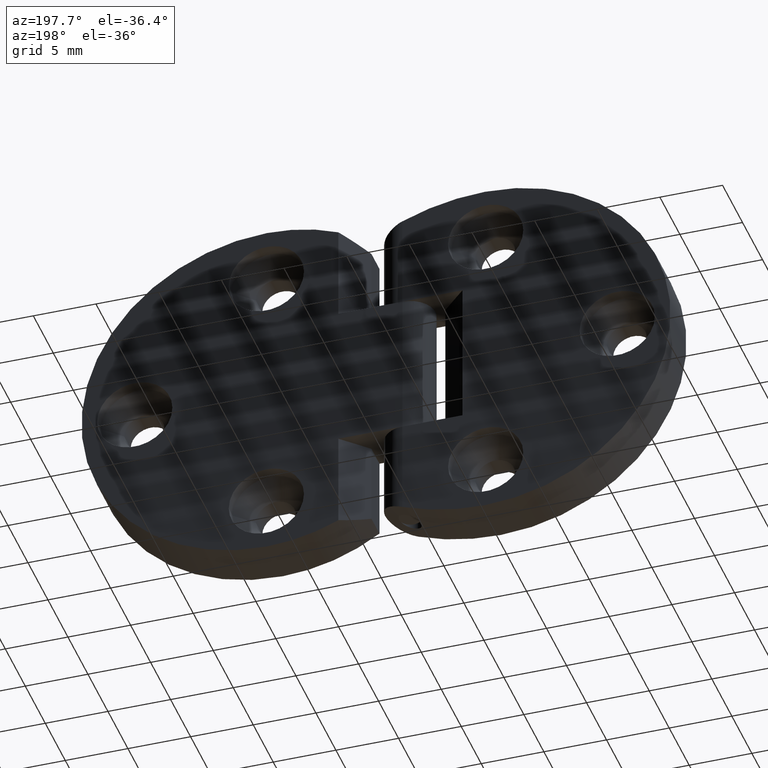
[diagram: clean part render]
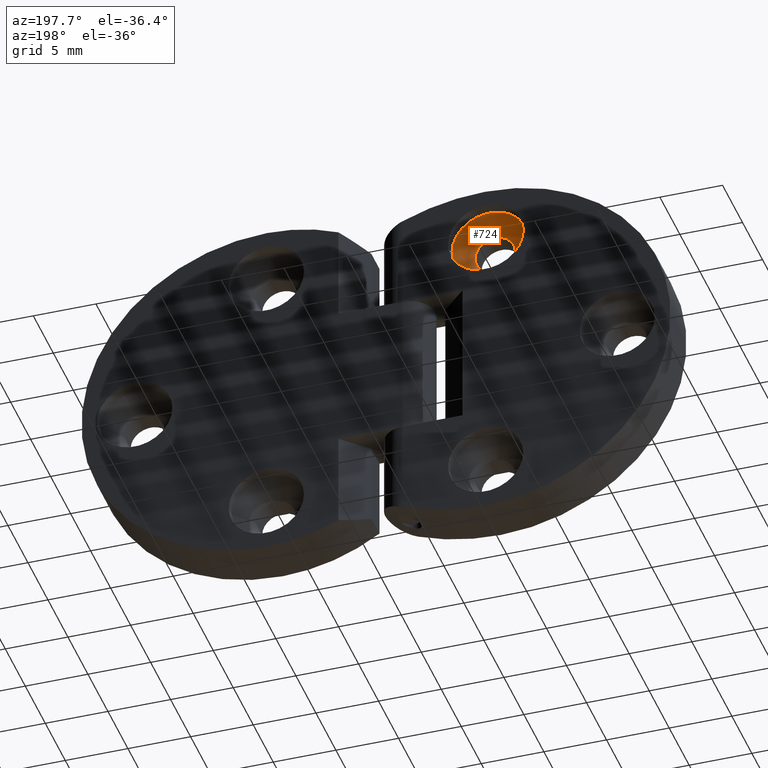
[diagram: same view with one face highlighted and labeled with its STEP entity id]
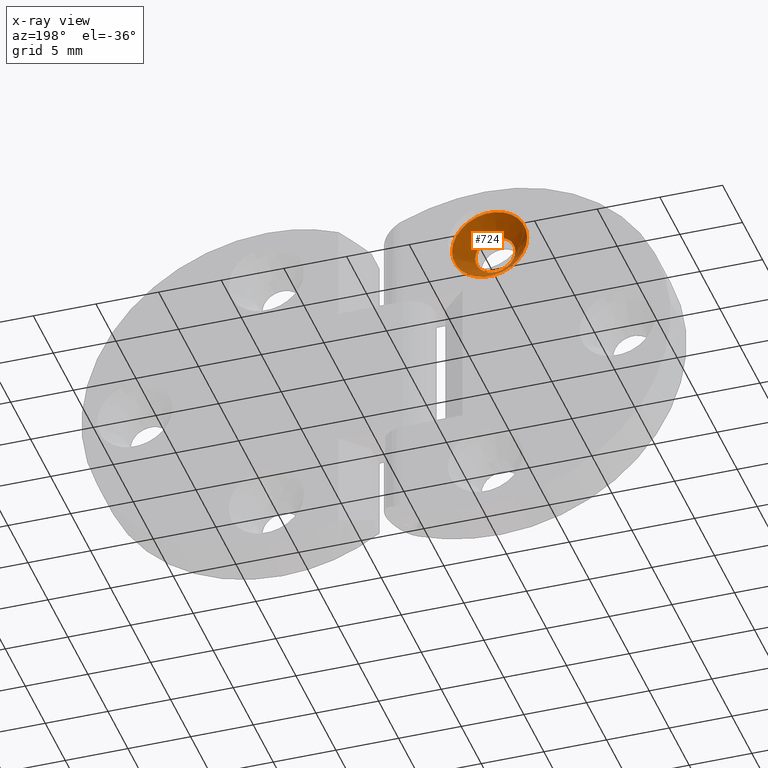
[diagram: x-ray of the same camera — body ghosted, the highlighted face saturated]
A machine part, auxiliary view. The second image highlights one B-rep face of the part: STEP entity #724.
The next image is the same camera in x-ray: the body ghosted, the highlighted face saturated — about 0% of this face is hidden behind the body in this view.
In plain terms, the highlighted conical surface has half-angle 45 deg.
Its self-contained STEP definition (entity closure, byte-faithful):
#69=FACE_BOUND('',#211,.T.);
#109=CIRCLE('',#776,1.6);
#110=CIRCLE('',#777,3.);
#155=CONICAL_SURFACE('',#775,2.3,0.785398163397448);
#163=FACE_OUTER_BOUND('',#210,.T.);
#210=EDGE_LOOP('',(#536));
#211=EDGE_LOOP('',(#537));
#375=VERTEX_POINT('',#1132);
#376=VERTEX_POINT('',#1134);
#446=EDGE_CURVE('',#375,#375,#109,.T.);
#447=EDGE_CURVE('',#376,#376,#110,.T.);
#536=ORIENTED_EDGE('',*,*,#446,.F.);
#537=ORIENTED_EDGE('',*,*,#447,.F.);
#724=ADVANCED_FACE('',(#163,#69),#155,.F.);
#775=AXIS2_PLACEMENT_3D('',#1131,#887,#888);
#776=AXIS2_PLACEMENT_3D('',#1133,#889,#890);
#777=AXIS2_PLACEMENT_3D('',#1135,#891,#892);
#887=DIRECTION('center_axis',(0.,1.,0.));
#888=DIRECTION('ref_axis',(1.,0.,0.));
#889=DIRECTION('center_axis',(0.,1.,0.));
#890=DIRECTION('ref_axis',(1.,0.,0.));
#891=DIRECTION('center_axis',(0.,-1.,0.));
#892=DIRECTION('ref_axis',(1.,0.,-7.50150692314295E-17));
#1131=CARTESIAN_POINT('Origin',(-6.65,0.3,10.5));
#1132=CARTESIAN_POINT('',(-8.24999999999999,-0.400000000000001,10.5));
#1133=CARTESIAN_POINT('Origin',(-6.65,-0.400000000000001,10.5));
#1134=CARTESIAN_POINT('',(-9.65,1.,10.5));
#1135=CARTESIAN_POINT('Origin',(-6.65,1.,10.5));